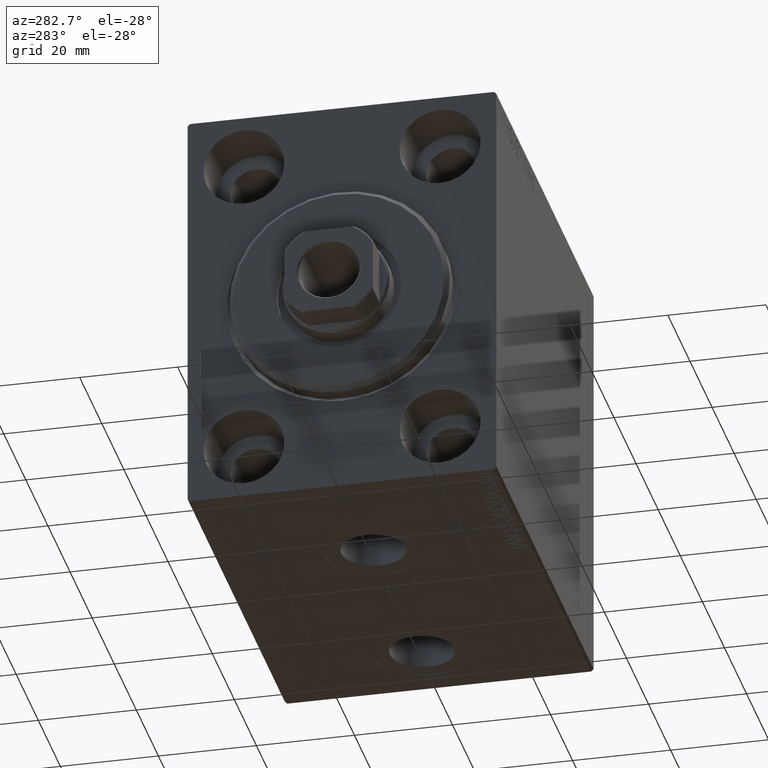
[diagram: clean part render]
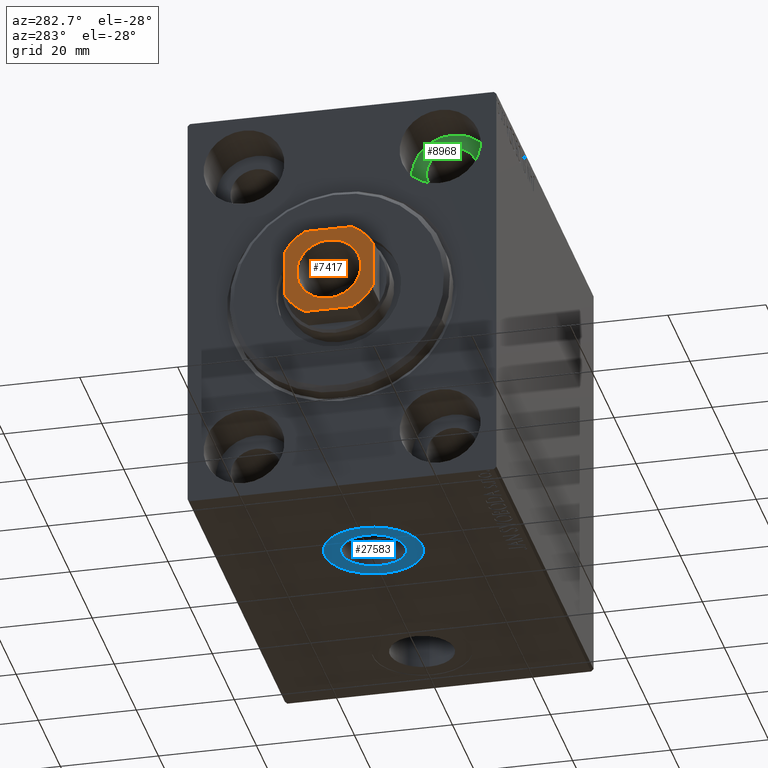
[diagram: same view with three faces highlighted in distinct colors, each labeled with its STEP entity id]
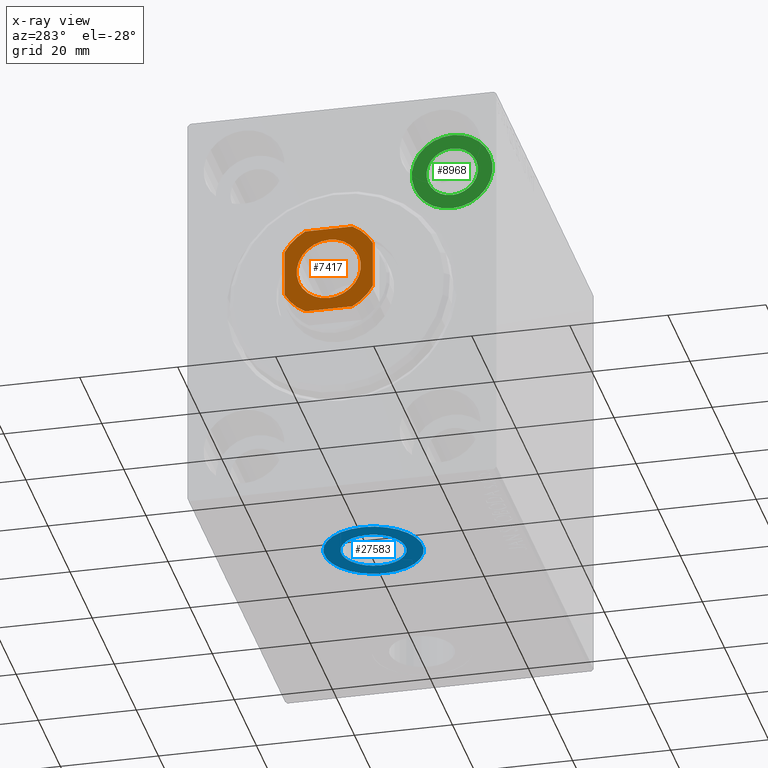
[diagram: x-ray of the same camera — body ghosted, the three highlighted faces saturated]
A machine part, auxiliary view with three faces highlighted in distinct colors.
The next image is the same camera in x-ray (body ghosted, the three faces saturated) — at least one of them is partly hidden behind the body in this view.
Their STEP definitions:

[orange] entity #7417 — the highlighted planar face has unit normal (-1, 0, 0).
#858 = ORIENTED_EDGE ( 'NONE', *, *, #30727, .T. ) ;
#2168 = EDGE_CURVE ( 'NONE', #41564, #9550, #41785, .T. ) ;
#2462 = DIRECTION ( 'NONE',  ( 1.000000000000000000, 0.000000000000000000, 0.000000000000000000 ) ) ;
#2586 = DIRECTION ( 'NONE',  ( 1.000000000000000000, 0.000000000000000000, 0.000000000000000000 ) ) ;
#2941 = VERTEX_POINT ( 'NONE', #21938 ) ;
#3120 = CARTESIAN_POINT ( 'NONE',  ( -4.799999999999956302, -9.000000000000001776, 88.00000000000000000 ) ) ;
#3160 = CARTESIAN_POINT ( 'NONE',  ( -8.999999999999998224, -4.799999999999960743, 88.00000000000000000 ) ) ;
#3221 = VERTEX_POINT ( 'NONE', #17358 ) ;
#4180 = ORIENTED_EDGE ( 'NONE', *, *, #20252, .T. ) ;
#5257 = CARTESIAN_POINT ( 'NONE',  ( 4.799999999999974065, -9.000000000000001776, 88.00000000000000000 ) ) ;
#5488 = CARTESIAN_POINT ( 'NONE',  ( -4.800000000000012257, 8.999999999999998224, 88.00000000000000000 ) ) ;
#5584 = AXIS2_PLACEMENT_3D ( 'NONE', #12466, #19145, #2462 ) ;
#7417 = ADVANCED_FACE ( 'NONE', ( #20163, #9475 ), #12824, .T. ) ;
#7504 = EDGE_LOOP ( 'NONE', ( #28655, #26638, #27078, #39398, #20047, #15691, #858, #27804 ) ) ;
#8012 = CIRCLE ( 'NONE', #26534, 6.550000000000000711 ) ;
#8793 = DIRECTION ( 'NONE',  ( -0.000000000000000000, 0.000000000000000000, 1.000000000000000000 ) ) ;
#8885 = CIRCLE ( 'NONE', #33789, 6.550000000000000711 ) ;
#9022 = CARTESIAN_POINT ( 'NONE',  ( 0.000000000000000000, 0.000000000000000000, 88.00000000000000000 ) ) ;
#9330 = DIRECTION ( 'NONE',  ( -1.000000000000000000, -0.000000000000000000, -0.000000000000000000 ) ) ;
#9475 = FACE_OUTER_BOUND ( 'NONE', #7504, .T. ) ;
#9550 = VERTEX_POINT ( 'NONE', #21334 ) ;
#10317 = ORIENTED_EDGE ( 'NONE', *, *, #38852, .T. ) ;
#10644 = DIRECTION ( 'NONE',  ( 1.927470528863119049E-16, -1.000000000000000000, 0.000000000000000000 ) ) ;
#11315 = CARTESIAN_POINT ( 'NONE',  ( 8.999999999999998224, 8.999999999999998224, 88.00000000000000000 ) ) ;
#11670 = VERTEX_POINT ( 'NONE', #5488 ) ;
#12458 = EDGE_CURVE ( 'NONE', #43317, #21470, #38006, .T. ) ;
#12466 = CARTESIAN_POINT ( 'NONE',  ( 0.000000000000000000, 0.000000000000000000, 88.00000000000000000 ) ) ;
#12824 = PLANE ( 'NONE',  #26210 ) ;
#13003 = EDGE_CURVE ( 'NONE', #11670, #43317, #29902, .T. ) ;
#13791 = EDGE_CURVE ( 'NONE', #21470, #34683, #20675, .T. ) ;
#14479 = DIRECTION ( 'NONE',  ( 0.000000000000000000, -0.000000000000000000, -1.000000000000000000 ) ) ;
#15094 = CARTESIAN_POINT ( 'NONE',  ( -8.999999999999998224, -9.000000000000001776, 88.00000000000000000 ) ) ;
#15578 = CARTESIAN_POINT ( 'NONE',  ( 0.000000000000000000, 0.000000000000000000, 88.00000000000000000 ) ) ;
#15691 = ORIENTED_EDGE ( 'NONE', *, *, #13791, .T. ) ;
#15773 = EDGE_CURVE ( 'NONE', #28543, #11670, #43825, .T. ) ;
#16168 = EDGE_LOOP ( 'NONE', ( #4180, #10317 ) ) ;
#17358 = CARTESIAN_POINT ( 'NONE',  ( 6.550000000000000711, 0.000000000000000000, 88.00000000000000000 ) ) ;
#17392 = AXIS2_PLACEMENT_3D ( 'NONE', #24384, #41279, #40847 ) ;
#18241 = CARTESIAN_POINT ( 'NONE',  ( -9.000000000000001776, 4.800000000000007816, 88.00000000000000000 ) ) ;
#19145 = DIRECTION ( 'NONE',  ( -0.000000000000000000, 0.000000000000000000, 1.000000000000000000 ) ) ;
#19946 = DIRECTION ( 'NONE',  ( -0.000000000000000000, 0.000000000000000000, 1.000000000000000000 ) ) ;
#20047 = ORIENTED_EDGE ( 'NONE', *, *, #12458, .T. ) ;
#20163 = FACE_BOUND ( 'NONE', #16168, .T. ) ;
#20231 = CIRCLE ( 'NONE', #17392, 10.19999999999998863 ) ;
#20252 = EDGE_CURVE ( 'NONE', #3221, #2941, #8012, .T. ) ;
#20675 = CIRCLE ( 'NONE', #42677, 10.19999999999997975 ) ;
#21334 = CARTESIAN_POINT ( 'NONE',  ( 9.000000000000001776, -4.799999999999974065, 88.00000000000000000 ) ) ;
#21348 = VERTEX_POINT ( 'NONE', #34074 ) ;
#21470 = VERTEX_POINT ( 'NONE', #3160 ) ;
#21938 = CARTESIAN_POINT ( 'NONE',  ( -6.550000000000000711, 8.021436534415164234E-16, 88.00000000000000000 ) ) ;
#22690 = DIRECTION ( 'NONE',  ( 1.000000000000000000, 0.000000000000000000, 0.000000000000000000 ) ) ;
#23838 = CARTESIAN_POINT ( 'NONE',  ( 0.000000000000000000, 0.000000000000000000, 88.00000000000000000 ) ) ;
#23905 = DIRECTION ( 'NONE',  ( -0.000000000000000000, 0.000000000000000000, 1.000000000000000000 ) ) ;
#24384 = CARTESIAN_POINT ( 'NONE',  ( 0.000000000000000000, 0.000000000000000000, 88.00000000000000000 ) ) ;
#26210 = AXIS2_PLACEMENT_3D ( 'NONE', #9022, #19946, #32847 ) ;
#26491 = VECTOR ( 'NONE', #2586, 1000.000000000000000 ) ;
#26534 = AXIS2_PLACEMENT_3D ( 'NONE', #15578, #42718, #22690 ) ;
#26638 = ORIENTED_EDGE ( 'NONE', *, *, #37323, .T. ) ;
#27078 = ORIENTED_EDGE ( 'NONE', *, *, #15773, .T. ) ;
#27804 = ORIENTED_EDGE ( 'NONE', *, *, #2168, .T. ) ;
#28543 = VERTEX_POINT ( 'NONE', #41511 ) ;
#28655 = ORIENTED_EDGE ( 'NONE', *, *, #41086, .T. ) ;
#29902 = CIRCLE ( 'NONE', #38414, 10.20000000000000462 ) ;
#30727 = EDGE_CURVE ( 'NONE', #34683, #41564, #33068, .T. ) ;
#32847 = DIRECTION ( 'NONE',  ( 1.000000000000000000, 0.000000000000000000, 0.000000000000000000 ) ) ;
#33068 = LINE ( 'NONE', #15094, #26491 ) ;
#33789 = AXIS2_PLACEMENT_3D ( 'NONE', #23838, #14479, #37620 ) ;
#34074 = CARTESIAN_POINT ( 'NONE',  ( 8.999999999999998224, 4.799999999999978506, 88.00000000000000000 ) ) ;
#34449 = CARTESIAN_POINT ( 'NONE',  ( -9.000000000000001776, 8.999999999999998224, 88.00000000000000000 ) ) ;
#34475 = DIRECTION ( 'NONE',  ( -1.927470528863119049E-16, 1.000000000000000000, -0.000000000000000000 ) ) ;
#34683 = VERTEX_POINT ( 'NONE', #3120 ) ;
#36402 = DIRECTION ( 'NONE',  ( 1.000000000000000000, 0.000000000000000000, 0.000000000000000000 ) ) ;
#36840 = CARTESIAN_POINT ( 'NONE',  ( 0.000000000000000000, 0.000000000000000000, 88.00000000000000000 ) ) ;
#37252 = DIRECTION ( 'NONE',  ( 1.000000000000000000, 0.000000000000000000, 0.000000000000000000 ) ) ;
#37275 = VECTOR ( 'NONE', #34475, 1000.000000000000000 ) ;
#37323 = EDGE_CURVE ( 'NONE', #21348, #28543, #20231, .T. ) ;
#37620 = DIRECTION ( 'NONE',  ( 1.000000000000000000, 0.000000000000000000, 0.000000000000000000 ) ) ;
#38006 = LINE ( 'NONE', #34449, #43384 ) ;
#38414 = AXIS2_PLACEMENT_3D ( 'NONE', #41676, #23905, #37252 ) ;
#38459 = LINE ( 'NONE', #11315, #37275 ) ;
#38852 = EDGE_CURVE ( 'NONE', #2941, #3221, #8885, .T. ) ;
#39398 = ORIENTED_EDGE ( 'NONE', *, *, #13003, .T. ) ;
#40847 = DIRECTION ( 'NONE',  ( 1.000000000000000000, 0.000000000000000000, 0.000000000000000000 ) ) ;
#41086 = EDGE_CURVE ( 'NONE', #9550, #21348, #38459, .T. ) ;
#41279 = DIRECTION ( 'NONE',  ( -0.000000000000000000, 0.000000000000000000, 1.000000000000000000 ) ) ;
#41511 = CARTESIAN_POINT ( 'NONE',  ( 4.799999999999979394, 8.999999999999998224, 88.00000000000000000 ) ) ;
#41564 = VERTEX_POINT ( 'NONE', #5257 ) ;
#41676 = CARTESIAN_POINT ( 'NONE',  ( 0.000000000000000000, 0.000000000000000000, 88.00000000000000000 ) ) ;
#41785 = CIRCLE ( 'NONE', #5584, 10.19999999999998863 ) ;
#42677 = AXIS2_PLACEMENT_3D ( 'NONE', #36840, #8793, #36402 ) ;
#42718 = DIRECTION ( 'NONE',  ( 0.000000000000000000, -0.000000000000000000, -1.000000000000000000 ) ) ;
#43317 = VERTEX_POINT ( 'NONE', #18241 ) ;
#43384 = VECTOR ( 'NONE', #10644, 1000.000000000000000 ) ;
#43487 = VECTOR ( 'NONE', #9330, 1000.000000000000000 ) ;
#43606 = CARTESIAN_POINT ( 'NONE',  ( -9.000000000000001776, 8.999999999999998224, 88.00000000000000000 ) ) ;
#43825 = LINE ( 'NONE', #43606, #43487 ) ;

[blue] entity #27583 — the highlighted planar face has unit normal (0, 0, -1).
#1143 = CARTESIAN_POINT ( 'NONE',  ( 38.50000000000000000, -4.971786364215177411E-15, -42.40000000000000568 ) ) ;
#1478 = CARTESIAN_POINT ( 'NONE',  ( 28.50000000000000000, -6.196433163362530470E-15, -42.40000000000000568 ) ) ;
#2051 = VERTEX_POINT ( 'NONE', #1143 ) ;
#2153 = DIRECTION ( 'NONE',  ( -1.000000000000000000, 0.000000000000000000, -0.000000000000000000 ) ) ;
#2924 = EDGE_CURVE ( 'NONE', #20184, #9710, #21936, .T. ) ;
#3419 = EDGE_CURVE ( 'NONE', #9710, #20184, #33300, .T. ) ;
#4561 = VERTEX_POINT ( 'NONE', #13380 ) ;
#5269 = FACE_BOUND ( 'NONE', #15343, .T. ) ;
#6115 = EDGE_LOOP ( 'NONE', ( #31838, #22252 ) ) ;
#6206 = ORIENTED_EDGE ( 'NONE', *, *, #3419, .F. ) ;
#8948 = DIRECTION ( 'NONE',  ( 0.000000000000000000, 0.000000000000000000, -1.000000000000000000 ) ) ;
#9710 = VERTEX_POINT ( 'NONE', #15326 ) ;
#10754 = DIRECTION ( 'NONE',  ( -1.000000000000000000, 0.000000000000000000, 0.000000000000000000 ) ) ;
#11262 = AXIS2_PLACEMENT_3D ( 'NONE', #1478, #25293, #25738 ) ;
#11714 = DIRECTION ( 'NONE',  ( 0.000000000000000000, 0.000000000000000000, -1.000000000000000000 ) ) ;
#12156 = CARTESIAN_POINT ( 'NONE',  ( 0.000000000000000000, 0.000000000000000000, -42.40000000000000568 ) ) ;
#12299 = DIRECTION ( 'NONE',  ( -1.000000000000000000, 0.000000000000000000, 0.000000000000000000 ) ) ;
#12421 = AXIS2_PLACEMENT_3D ( 'NONE', #21419, #18526, #10754 ) ;
#13025 = CIRCLE ( 'NONE', #17271, 9.999999999999998224 ) ;
#13380 = CARTESIAN_POINT ( 'NONE',  ( 18.50000000000000355, -6.196433163362530470E-15, -42.40000000000000568 ) ) ;
#15326 = CARTESIAN_POINT ( 'NONE',  ( 21.91999999999999815, -6.196433163362530470E-15, -42.40000000000000568 ) ) ;
#15343 = EDGE_LOOP ( 'NONE', ( #6206, #38501 ) ) ;
#17271 = AXIS2_PLACEMENT_3D ( 'NONE', #22986, #8948, #12299 ) ;
#18526 = DIRECTION ( 'NONE',  ( 0.000000000000000000, 0.000000000000000000, -1.000000000000000000 ) ) ;
#20184 = VERTEX_POINT ( 'NONE', #22473 ) ;
#21186 = EDGE_CURVE ( 'NONE', #4561, #2051, #43693, .T. ) ;
#21419 = CARTESIAN_POINT ( 'NONE',  ( 28.50000000000000000, -6.196433163362530470E-15, -42.40000000000000568 ) ) ;
#21936 = CIRCLE ( 'NONE', #11262, 6.580000000000002736 ) ;
#22252 = ORIENTED_EDGE ( 'NONE', *, *, #32408, .T. ) ;
#22473 = CARTESIAN_POINT ( 'NONE',  ( 35.07999999999999829, -5.390615569523572217E-15, -42.40000000000000568 ) ) ;
#22648 = AXIS2_PLACEMENT_3D ( 'NONE', #36238, #36013, #38905 ) ;
#22986 = CARTESIAN_POINT ( 'NONE',  ( 28.50000000000000000, -6.196433163362530470E-15, -42.40000000000000568 ) ) ;
#25293 = DIRECTION ( 'NONE',  ( 0.000000000000000000, 0.000000000000000000, -1.000000000000000000 ) ) ;
#25738 = DIRECTION ( 'NONE',  ( -1.000000000000000000, 0.000000000000000000, 0.000000000000000000 ) ) ;
#27583 = ADVANCED_FACE ( 'NONE', ( #5269, #32629 ), #42420, .T. ) ;
#31838 = ORIENTED_EDGE ( 'NONE', *, *, #21186, .T. ) ;
#32408 = EDGE_CURVE ( 'NONE', #2051, #4561, #13025, .T. ) ;
#32629 = FACE_OUTER_BOUND ( 'NONE', #6115, .T. ) ;
#33300 = CIRCLE ( 'NONE', #22648, 6.580000000000002736 ) ;
#36013 = DIRECTION ( 'NONE',  ( 0.000000000000000000, 0.000000000000000000, -1.000000000000000000 ) ) ;
#36238 = CARTESIAN_POINT ( 'NONE',  ( 28.50000000000000000, -6.196433163362530470E-15, -42.40000000000000568 ) ) ;
#37719 = AXIS2_PLACEMENT_3D ( 'NONE', #12156, #11714, #2153 ) ;
#38501 = ORIENTED_EDGE ( 'NONE', *, *, #2924, .F. ) ;
#38905 = DIRECTION ( 'NONE',  ( -1.000000000000000000, 0.000000000000000000, 0.000000000000000000 ) ) ;
#42420 = PLANE ( 'NONE',  #37719 ) ;
#43693 = CIRCLE ( 'NONE', #12421, 9.999999999999998224 ) ;

[green] entity #8968 — the highlighted planar face has unit normal (-1, 0, 0).
#1019 = VERTEX_POINT ( 'NONE', #21865 ) ;
#2807 = AXIS2_PLACEMENT_3D ( 'NONE', #25068, #26337, #5023 ) ;
#3425 = ORIENTED_EDGE ( 'NONE', *, *, #21286, .T. ) ;
#3564 = EDGE_CURVE ( 'NONE', #24990, #9865, #34024, .T. ) ;
#5023 = DIRECTION ( 'NONE',  ( 0.000000000000000000, 0.000000000000000000, 1.000000000000000000 ) ) ;
#6534 = CARTESIAN_POINT ( 'NONE',  ( 10.99999999999999645, -19.99999999999999645, 36.75000000000000000 ) ) ;
#7123 = AXIS2_PLACEMENT_3D ( 'NONE', #12444, #28708, #15797 ) ;
#7236 = CARTESIAN_POINT ( 'NONE',  ( 11.00000000000000000, -19.99999999999999645, 39.74999999999999289 ) ) ;
#8058 = CARTESIAN_POINT ( 'NONE',  ( 11.00000000000000000, -19.99999999999999645, 31.50000000000000000 ) ) ;
#8348 = FACE_BOUND ( 'NONE', #25122, .T. ) ;
#8968 = ADVANCED_FACE ( 'NONE', ( #8348, #42623 ), #35502, .T. ) ;
#9865 = VERTEX_POINT ( 'NONE', #14184 ) ;
#11279 = DIRECTION ( 'NONE',  ( 0.000000000000000000, 0.000000000000000000, 1.000000000000000000 ) ) ;
#12444 = CARTESIAN_POINT ( 'NONE',  ( 11.00000000000000000, -19.99999999999999645, 31.50000000000000000 ) ) ;
#12880 = DIRECTION ( 'NONE',  ( 0.000000000000000000, 0.000000000000000000, 1.000000000000000000 ) ) ;
#13558 = CIRCLE ( 'NONE', #7123, 8.249999999999992895 ) ;
#14184 = CARTESIAN_POINT ( 'NONE',  ( 10.99999999999999645, -19.99999999999999645, 26.25000000000000355 ) ) ;
#15797 = DIRECTION ( 'NONE',  ( 0.000000000000000000, 0.000000000000000000, 1.000000000000000000 ) ) ;
#16697 = AXIS2_PLACEMENT_3D ( 'NONE', #8058, #21640, #32758 ) ;
#18671 = VERTEX_POINT ( 'NONE', #7236 ) ;
#19255 = EDGE_CURVE ( 'NONE', #9865, #24990, #25794, .T. ) ;
#21286 = EDGE_CURVE ( 'NONE', #18671, #1019, #39424, .T. ) ;
#21523 = CARTESIAN_POINT ( 'NONE',  ( 10.99999999999999645, -19.99999999999999645, 31.50000000000000000 ) ) ;
#21640 = DIRECTION ( 'NONE',  ( -1.000000000000000000, 0.000000000000000000, 0.000000000000000000 ) ) ;
#21865 = CARTESIAN_POINT ( 'NONE',  ( 11.00000000000000000, -19.99999999999999645, 23.25000000000000355 ) ) ;
#21905 = EDGE_LOOP ( 'NONE', ( #3425, #42771 ) ) ;
#24405 = AXIS2_PLACEMENT_3D ( 'NONE', #21523, #25091, #11279 ) ;
#24990 = VERTEX_POINT ( 'NONE', #6534 ) ;
#25068 = CARTESIAN_POINT ( 'NONE',  ( 11.00000000000000000, 0.000000000000000000, 0.000000000000000000 ) ) ;
#25091 = DIRECTION ( 'NONE',  ( -1.000000000000000000, 0.000000000000000000, 0.000000000000000000 ) ) ;
#25122 = EDGE_LOOP ( 'NONE', ( #42323, #41401 ) ) ;
#25308 = EDGE_CURVE ( 'NONE', #1019, #18671, #13558, .T. ) ;
#25794 = CIRCLE ( 'NONE', #24405, 5.249999999999997335 ) ;
#26337 = DIRECTION ( 'NONE',  ( -1.000000000000000000, 0.000000000000000000, 0.000000000000000000 ) ) ;
#26689 = DIRECTION ( 'NONE',  ( -1.000000000000000000, 0.000000000000000000, 0.000000000000000000 ) ) ;
#26925 = AXIS2_PLACEMENT_3D ( 'NONE', #33788, #26689, #12880 ) ;
#28708 = DIRECTION ( 'NONE',  ( -1.000000000000000000, 0.000000000000000000, 0.000000000000000000 ) ) ;
#32758 = DIRECTION ( 'NONE',  ( 0.000000000000000000, 0.000000000000000000, 1.000000000000000000 ) ) ;
#33788 = CARTESIAN_POINT ( 'NONE',  ( 10.99999999999999645, -19.99999999999999645, 31.50000000000000000 ) ) ;
#34024 = CIRCLE ( 'NONE', #26925, 5.249999999999997335 ) ;
#35502 = PLANE ( 'NONE',  #2807 ) ;
#39424 = CIRCLE ( 'NONE', #16697, 8.249999999999992895 ) ;
#41401 = ORIENTED_EDGE ( 'NONE', *, *, #19255, .F. ) ;
#42323 = ORIENTED_EDGE ( 'NONE', *, *, #3564, .F. ) ;
#42623 = FACE_OUTER_BOUND ( 'NONE', #21905, .T. ) ;
#42771 = ORIENTED_EDGE ( 'NONE', *, *, #25308, .T. ) ;